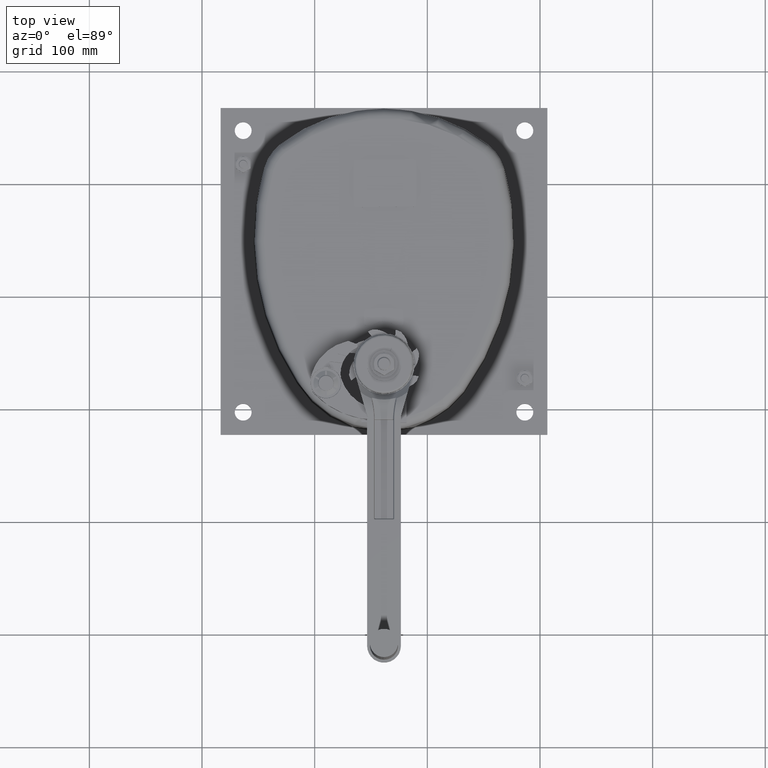
[diagram: clean part render]
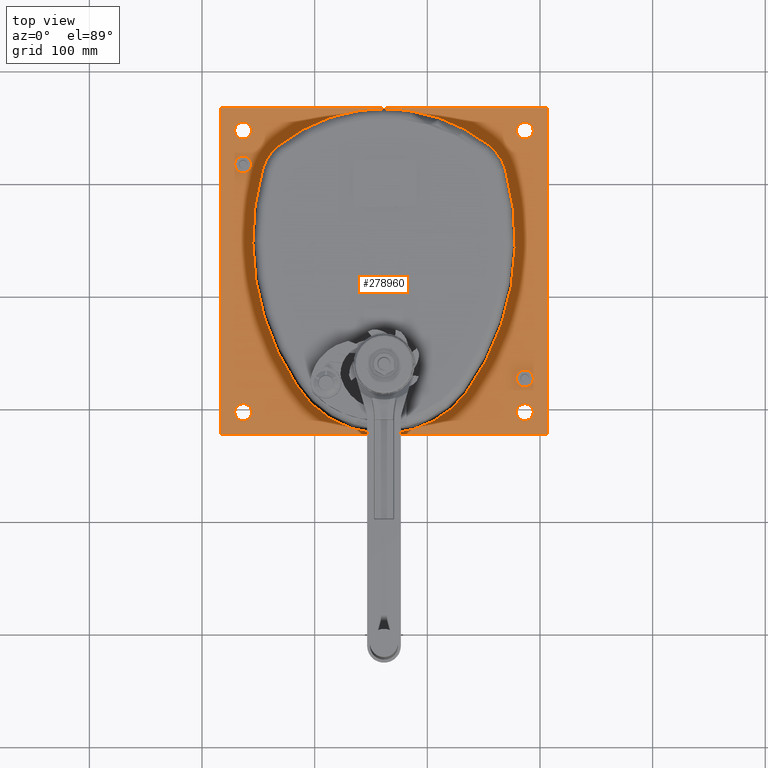
[diagram: same view with one face highlighted and labeled with its STEP entity id]
A machine part, top view. The second image highlights one B-rep face of the part: STEP entity #278960.
In plain terms, the highlighted planar face has unit normal (0, 0, 1).
Its self-contained STEP definition (entity closure, byte-faithful):
#276860=CARTESIAN_POINT('',(0.,0.,-117.));
#276870=DIRECTION('',(0.,0.,1.));
#276880=DIRECTION('',(1.,0.,0.));
#276890=AXIS2_PLACEMENT_3D('',#276860,#276870,#276880);
#276900=PLANE('',#276890);
#276910=CARTESIAN_POINT('',(20.,270.,-117.));
#276920=DIRECTION('',(0.,0.,1.));
#276930=DIRECTION('',(1.,0.,0.));
#276940=AXIS2_PLACEMENT_3D('',#276910,#276920,#276930);
#276950=CIRCLE('',#276940,7.5);
#276960=CARTESIAN_POINT('',(27.5,270.,-117.));
#276970=VERTEX_POINT('',#276960);
#276980=CARTESIAN_POINT('',(12.5,270.,-117.));
#276990=VERTEX_POINT('',#276980);
#277000=EDGE_CURVE('',#276970,#276990,#276950,.T.);
#277010=ORIENTED_EDGE('',*,*,#277000,.F.);
#277020=EDGE_CURVE('',#276990,#276970,#276950,.T.);
#277030=ORIENTED_EDGE('',*,*,#277020,.F.);
#277040=EDGE_LOOP('',(#277030,#277010));
#277050=FACE_BOUND('',#277040,.T.);
#277060=CARTESIAN_POINT('',(270.,20.,-117.));
#277070=DIRECTION('',(0.,0.,1.));
#277080=DIRECTION('',(1.,0.,0.));
#277090=AXIS2_PLACEMENT_3D('',#277060,#277070,#277080);
#277100=CIRCLE('',#277090,7.5);
#277110=CARTESIAN_POINT('',(277.5,20.,-117.));
#277120=VERTEX_POINT('',#277110);
#277130=CARTESIAN_POINT('',(262.5,20.,-117.));
#277140=VERTEX_POINT('',#277130);
#277150=EDGE_CURVE('',#277120,#277140,#277100,.T.);
#277160=ORIENTED_EDGE('',*,*,#277150,.F.);
#277170=EDGE_CURVE('',#277140,#277120,#277100,.T.);
#277180=ORIENTED_EDGE('',*,*,#277170,.F.);
#277190=EDGE_LOOP('',(#277180,#277160));
#277200=FACE_BOUND('',#277190,.T.);
#277210=CARTESIAN_POINT('',(270.,270.,-117.));
#277220=DIRECTION('',(0.,0.,1.));
#277230=DIRECTION('',(1.,0.,0.));
#277240=AXIS2_PLACEMENT_3D('',#277210,#277220,#277230);
#277250=CIRCLE('',#277240,7.5);
#277260=CARTESIAN_POINT('',(277.5,270.,-117.));
#277270=VERTEX_POINT('',#277260);
#277280=CARTESIAN_POINT('',(262.5,270.,-117.));
#277290=VERTEX_POINT('',#277280);
#277300=EDGE_CURVE('',#277270,#277290,#277250,.T.);
#277310=ORIENTED_EDGE('',*,*,#277300,.F.);
#277320=EDGE_CURVE('',#277290,#277270,#277250,.T.);
#277330=ORIENTED_EDGE('',*,*,#277320,.F.);
#277340=EDGE_LOOP('',(#277330,#277310));
#277350=FACE_BOUND('',#277340,.T.);
#277360=CARTESIAN_POINT('',(20.,20.,-117.));
#277370=DIRECTION('',(0.,0.,1.));
#277380=DIRECTION('',(1.,0.,0.));
#277390=AXIS2_PLACEMENT_3D('',#277360,#277370,#277380);
#277400=CIRCLE('',#277390,7.5);
#277410=CARTESIAN_POINT('',(27.5,20.,-117.));
#277420=VERTEX_POINT('',#277410);
#277430=CARTESIAN_POINT('',(12.5,20.,-117.));
#277440=VERTEX_POINT('',#277430);
#277450=EDGE_CURVE('',#277420,#277440,#277400,.T.);
#277460=ORIENTED_EDGE('',*,*,#277450,.F.);
#277470=EDGE_CURVE('',#277440,#277420,#277400,.T.);
#277480=ORIENTED_EDGE('',*,*,#277470,.F.);
#277490=EDGE_LOOP('',(#277480,#277460));
#277500=FACE_BOUND('',#277490,.T.);
#277510=CARTESIAN_POINT('',(145.,92.5,-117.));
#277520=DIRECTION('',(0.,0.,1.));
#277530=DIRECTION('',(1.,0.,0.));
#277540=AXIS2_PLACEMENT_3D('',#277510,#277520,#277530);
#277550=CIRCLE('',#277540,91.5);
#277560=CARTESIAN_POINT('',(153.366600289489,1.38331656828197,-117.));
#277570=VERTEX_POINT('',#277560);
#277580=CARTESIAN_POINT('',(217.025711936639,36.0682109089188,-117.));
#277590=VERTEX_POINT('',#277580);
#277600=EDGE_CURVE('',#277570,#277590,#277550,.T.);
#277610=ORIENTED_EDGE('',*,*,#277600,.F.);
#277620=CARTESIAN_POINT('',(30.,172.5,-117.));
#277630=DIRECTION('',(0.,0.,1.));
#277640=DIRECTION('',(1.,0.,0.));
#277650=AXIS2_PLACEMENT_3D('',#277620,#277630,#277640);
#277660=CIRCLE('',#277650,231.5);
#277670=CARTESIAN_POINT('',(252.81058895234,235.330656933629,-117.));
#277680=VERTEX_POINT('',#277670);
#277690=EDGE_CURVE('',#277590,#277680,#277660,.T.);
#277700=ORIENTED_EDGE('',*,*,#277690,.F.);
#277710=CARTESIAN_POINT('',(212.868301947925,224.067277828896,-117.));
#277720=DIRECTION('',(0.,0.,-1.));
#277730=DIRECTION('',(-1.,0.,0.));
#277740=AXIS2_PLACEMENT_3D('',#277710,#277720,#277730);
#277750=CIRCLE('',#277740,41.5);
#277760=CARTESIAN_POINT('',(238.473161319187,256.72675082798,-117.));
#277770=VERTEX_POINT('',#277760);
#277780=EDGE_CURVE('',#277770,#277680,#277750,.T.);
#277790=ORIENTED_EDGE('',*,*,#277780,.T.);
#277800=CARTESIAN_POINT('',(145.,137.5,-117.));
#277810=DIRECTION('',(0.,0.,1.));
#277820=DIRECTION('',(1.,0.,0.));
#277830=AXIS2_PLACEMENT_3D('',#277800,#277810,#277820);
#277840=CIRCLE('',#277830,151.5);
#277850=CARTESIAN_POINT('',(51.5268386808125,256.72675082798,-117.));
#277860=VERTEX_POINT('',#277850);
#277870=EDGE_CURVE('',#277770,#277860,#277840,.T.);
#277880=ORIENTED_EDGE('',*,*,#277870,.F.);
#277890=CARTESIAN_POINT('',(77.1316980520751,224.067277828896,-117.));
#277900=DIRECTION('',(0.,0.,-1.));
#277910=DIRECTION('',(-1.,0.,0.));
#277920=AXIS2_PLACEMENT_3D('',#277890,#277900,#277910);
#277930=CIRCLE('',#277920,41.5);
#277940=CARTESIAN_POINT('',(37.1894110476599,235.330656933629,-117.));
#277950=VERTEX_POINT('',#277940);
#277960=EDGE_CURVE('',#277950,#277860,#277930,.T.);
#277970=ORIENTED_EDGE('',*,*,#277960,.T.);
#277980=CARTESIAN_POINT('',(260.,172.5,-117.));
#277990=DIRECTION('',(0.,0.,1.));
#278000=DIRECTION('',(1.,0.,0.));
#278010=AXIS2_PLACEMENT_3D('',#277980,#277990,#278000);
#278020=CIRCLE('',#278010,231.5);
#278030=CARTESIAN_POINT('',(67.0422724461931,44.5954833585974,-117.));
#278040=VERTEX_POINT('',#278030);
#278050=EDGE_CURVE('',#277950,#278040,#278020,.T.);
#278060=ORIENTED_EDGE('',*,*,#278050,.F.);
#278070=CARTESIAN_POINT('',(136.633399718259,1.3833165675705,-117.));
#278080=VERTEX_POINT('',#278070);
#278090=EDGE_CURVE('',#278040,#278080,#277550,.T.);
#278100=ORIENTED_EDGE('',*,*,#278090,.F.);
#278110=CARTESIAN_POINT('',(136.633399734659,0.,-117.));
#278120=DIRECTION('',(0.,-1.,0.));
#278130=VECTOR('',#278120,1.);
#278140=LINE('',#278110,#278130);
#278150=CARTESIAN_POINT('',(136.633399734659,0.,-117.));
#278160=VERTEX_POINT('',#278150);
#278170=EDGE_CURVE('',#278080,#278160,#278140,.T.);
#278180=ORIENTED_EDGE('',*,*,#278170,.F.);
#278190=CARTESIAN_POINT('',(0.,0.,-117.));
#278200=DIRECTION('',(-1.,0.,0.));
#278210=VECTOR('',#278200,1.);
#278220=LINE('',#278190,#278210);
#278230=CARTESIAN_POINT('',(0.,0.,-117.));
#278240=VERTEX_POINT('',#278230);
#278250=EDGE_CURVE('',#278160,#278240,#278220,.T.);
#278260=ORIENTED_EDGE('',*,*,#278250,.F.);
#278270=CARTESIAN_POINT('',(0.,0.,-117.));
#278280=DIRECTION('',(0.,1.,0.));
#278290=VECTOR('',#278280,1.);
#278300=LINE('',#278270,#278290);
#278310=CARTESIAN_POINT('',(0.,290.,-117.));
#278320=VERTEX_POINT('',#278310);
#278330=EDGE_CURVE('',#278240,#278320,#278300,.T.);
#278340=ORIENTED_EDGE('',*,*,#278330,.F.);
#278350=CARTESIAN_POINT('',(0.,290.,-117.));
#278360=DIRECTION('',(1.,0.,0.));
#278370=VECTOR('',#278360,1.);
#278380=LINE('',#278350,#278370);
#278390=CARTESIAN_POINT('',(290.,290.,-117.));
#278400=VERTEX_POINT('',#278390);
#278410=EDGE_CURVE('',#278320,#278400,#278380,.T.);
#278420=ORIENTED_EDGE('',*,*,#278410,.F.);
#278430=CARTESIAN_POINT('',(290.,0.,-117.));
#278440=DIRECTION('',(0.,-1.,0.));
#278450=VECTOR('',#278440,1.);
#278460=LINE('',#278430,#278450);
#278470=CARTESIAN_POINT('',(290.,0.,-117.));
#278480=VERTEX_POINT('',#278470);
#278490=EDGE_CURVE('',#278400,#278480,#278460,.T.);
#278500=ORIENTED_EDGE('',*,*,#278490,.F.);
#278510=CARTESIAN_POINT('',(153.366600265341,0.,-117.));
#278520=VERTEX_POINT('',#278510);
#278530=EDGE_CURVE('',#278480,#278520,#278220,.T.);
#278540=ORIENTED_EDGE('',*,*,#278530,.F.);
#278550=CARTESIAN_POINT('',(153.366600289489,1.38331656828197,-117.));
#278560=CARTESIAN_POINT('',(153.366600289489,1.34911729144971,-117.));
#278570=CARTESIAN_POINT('',(153.366600265341,1.31491753054081,-117.));
#278580=CARTESIAN_POINT('',(153.366600265341,0.520479158523463,-117.));
#278590=CARTESIAN_POINT('',(153.366600265341,-0.239760420738268,-117.));
#278600=CARTESIAN_POINT('',(153.366600265341,-1.,-117.));
#278610=B_SPLINE_CURVE_WITH_KNOTS('',3,(#278550,#278560,#278570,#278580,
#278590,#278600),.UNSPECIFIED.,.F.,.F.,(4,2,4),(0.,0.102596378266849,
2.38331511605204),.UNSPECIFIED.);
#278620=EDGE_CURVE('',#277570,#278520,#278610,.T.);
#278630=ORIENTED_EDGE('',*,*,#278620,.T.);
#278640=EDGE_LOOP('',(#278630,#278540,#278500,#278420,#278340,#278260,
#278180,#278100,#278060,#277970,#277880,#277790,#277700,#277610));
#278650=FACE_OUTER_BOUND('',#278640,.T.);
#278660=CARTESIAN_POINT('',(270.,50.,-117.));
#278670=DIRECTION('',(0.,-1.22464679914735E-16,1.));
#278680=DIRECTION('',(-1.,0.,0.));
#278690=AXIS2_PLACEMENT_3D('',#278660,#278670,#278680);
#278700=CIRCLE('',#278690,7.5);
#278710=CARTESIAN_POINT('',(262.5,50.,-117.));
#278720=VERTEX_POINT('',#278710);
#278730=CARTESIAN_POINT('',(277.5,50.,-117.));
#278740=VERTEX_POINT('',#278730);
#278750=EDGE_CURVE('',#278720,#278740,#278700,.T.);
#278760=ORIENTED_EDGE('',*,*,#278750,.F.);
#278770=EDGE_CURVE('',#278740,#278720,#278700,.T.);
#278780=ORIENTED_EDGE('',*,*,#278770,.F.);
#278790=EDGE_LOOP('',(#278780,#278760));
#278800=FACE_BOUND('',#278790,.T.);
#278810=CARTESIAN_POINT('',(20.,240.,-117.));
#278820=DIRECTION('',(0.,-1.22464679914735E-16,1.));
#278830=DIRECTION('',(-1.,0.,0.));
#278840=AXIS2_PLACEMENT_3D('',#278810,#278820,#278830);
#278850=CIRCLE('',#278840,7.5);
#278860=CARTESIAN_POINT('',(12.5,240.,-117.));
#278870=VERTEX_POINT('',#278860);
#278880=CARTESIAN_POINT('',(27.5,240.,-117.));
#278890=VERTEX_POINT('',#278880);
#278900=EDGE_CURVE('',#278870,#278890,#278850,.T.);
#278910=ORIENTED_EDGE('',*,*,#278900,.F.);
#278920=EDGE_CURVE('',#278890,#278870,#278850,.T.);
#278930=ORIENTED_EDGE('',*,*,#278920,.F.);
#278940=EDGE_LOOP('',(#278930,#278910));
#278950=FACE_BOUND('',#278940,.T.);
#278960=ADVANCED_FACE('',(#277050,#277200,#277350,#277500,#278650,
#278800,#278950),#276900,.T.);